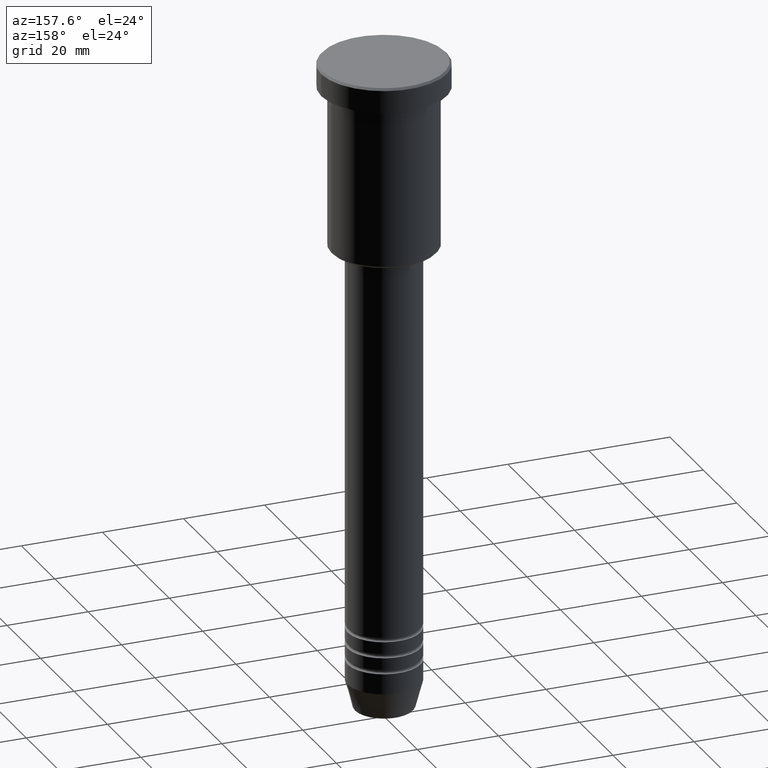
[diagram: clean part render]
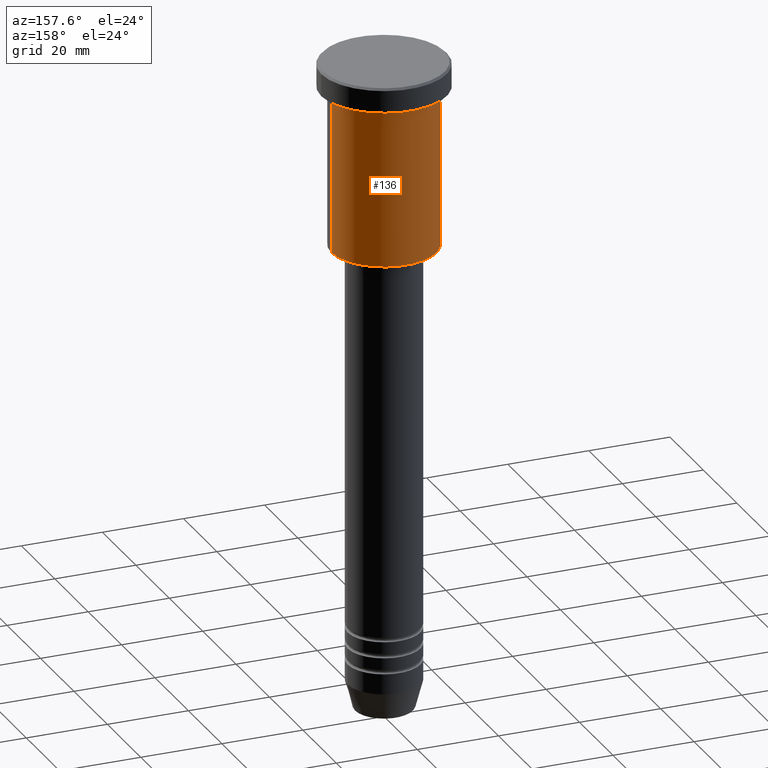
[diagram: same view with one face highlighted and labeled with its STEP entity id]
A machine part, auxiliary view. The second image highlights one B-rep face of the part: STEP entity #136.
In plain terms, the highlighted cylindrical surface (partial cylindrical patch) has radius 13 mm, axis along (-0, -0, 1).
Its self-contained STEP definition (entity closure, byte-faithful):
#26 = VECTOR ( 'NONE', #596, 1000.000000000000000 ) ;
#42 = EDGE_CURVE ( 'NONE', #665, #1156, #437, .T. ) ;
#55 = DIRECTION ( 'NONE',  ( 1.000000000000000000, 0.000000000000000000, 0.000000000000000000 ) ) ;
#56 = DIRECTION ( 'NONE',  ( -0.000000000000000000, -0.000000000000000000, 1.000000000000000000 ) ) ;
#87 = EDGE_CURVE ( 'NONE', #892, #1076, #755, .T. ) ;
#99 = VECTOR ( 'NONE', #317, 1000.000000000000000 ) ;
#132 = LINE ( 'NONE', #1142, #26 ) ;
#136 = ADVANCED_FACE ( 'NONE', ( #249 ), #436, .T. ) ;
#159 = EDGE_LOOP ( 'NONE', ( #503, #1005, #1119, #950 ) ) ;
#189 = CARTESIAN_POINT ( 'NONE',  ( -13.00000000000000178, 1.592040838891559293E-15, -6.999999999999995559 ) ) ;
#249 = FACE_OUTER_BOUND ( 'NONE', #159, .T. ) ;
#251 = AXIS2_PLACEMENT_3D ( 'NONE', #523, #631, #1000 ) ;
#275 = CARTESIAN_POINT ( 'NONE',  ( 13.00000000000000178, 0.000000000000000000, -6.999999999999995559 ) ) ;
#317 = DIRECTION ( 'NONE',  ( -0.000000000000000000, -0.000000000000000000, 1.000000000000000000 ) ) ;
#359 = DIRECTION ( 'NONE',  ( -0.000000000000000000, -0.000000000000000000, 1.000000000000000000 ) ) ;
#420 = LINE ( 'NONE', #1056, #99 ) ;
#436 = CYLINDRICAL_SURFACE ( 'NONE', #966, 13.00000000000000178 ) ;
#437 = CIRCLE ( 'NONE', #1174, 13.00000000000000178 ) ;
#453 = CARTESIAN_POINT ( 'NONE',  ( 0.000000000000000000, 0.000000000000000000, -6.999999999999995559 ) ) ;
#503 = ORIENTED_EDGE ( 'NONE', *, *, #87, .T. ) ;
#523 = CARTESIAN_POINT ( 'NONE',  ( 0.000000000000000000, 0.000000000000000000, -45.50000000000000711 ) ) ;
#596 = DIRECTION ( 'NONE',  ( -0.000000000000000000, -0.000000000000000000, 1.000000000000000000 ) ) ;
#631 = DIRECTION ( 'NONE',  ( -0.000000000000000000, -0.000000000000000000, 1.000000000000000000 ) ) ;
#665 = VERTEX_POINT ( 'NONE', #275 ) ;
#755 = CIRCLE ( 'NONE', #251, 13.00000000000000178 ) ;
#787 = DIRECTION ( 'NONE',  ( 1.000000000000000000, 0.000000000000000000, 0.000000000000000000 ) ) ;
#877 = CARTESIAN_POINT ( 'NONE',  ( 13.00000000000000178, 0.000000000000000000, -45.50000000000000711 ) ) ;
#892 = VERTEX_POINT ( 'NONE', #877 ) ;
#950 = ORIENTED_EDGE ( 'NONE', *, *, #1069, .F. ) ;
#961 = EDGE_CURVE ( 'NONE', #1076, #1156, #132, .T. ) ;
#966 = AXIS2_PLACEMENT_3D ( 'NONE', #990, #56, #787 ) ;
#990 = CARTESIAN_POINT ( 'NONE',  ( 0.000000000000000000, 0.000000000000000000, 0.000000000000000000 ) ) ;
#1000 = DIRECTION ( 'NONE',  ( -1.000000000000000000, 0.000000000000000000, 0.000000000000000000 ) ) ;
#1005 = ORIENTED_EDGE ( 'NONE', *, *, #961, .T. ) ;
#1056 = CARTESIAN_POINT ( 'NONE',  ( 13.00000000000000178, 0.000000000000000000, 0.000000000000000000 ) ) ;
#1062 = CARTESIAN_POINT ( 'NONE',  ( -13.00000000000000178, 1.592040838891559293E-15, -45.50000000000000711 ) ) ;
#1069 = EDGE_CURVE ( 'NONE', #892, #665, #420, .T. ) ;
#1076 = VERTEX_POINT ( 'NONE', #1062 ) ;
#1119 = ORIENTED_EDGE ( 'NONE', *, *, #42, .F. ) ;
#1142 = CARTESIAN_POINT ( 'NONE',  ( -13.00000000000000178, 1.592040838891559293E-15, 0.000000000000000000 ) ) ;
#1156 = VERTEX_POINT ( 'NONE', #189 ) ;
#1174 = AXIS2_PLACEMENT_3D ( 'NONE', #453, #359, #55 ) ;